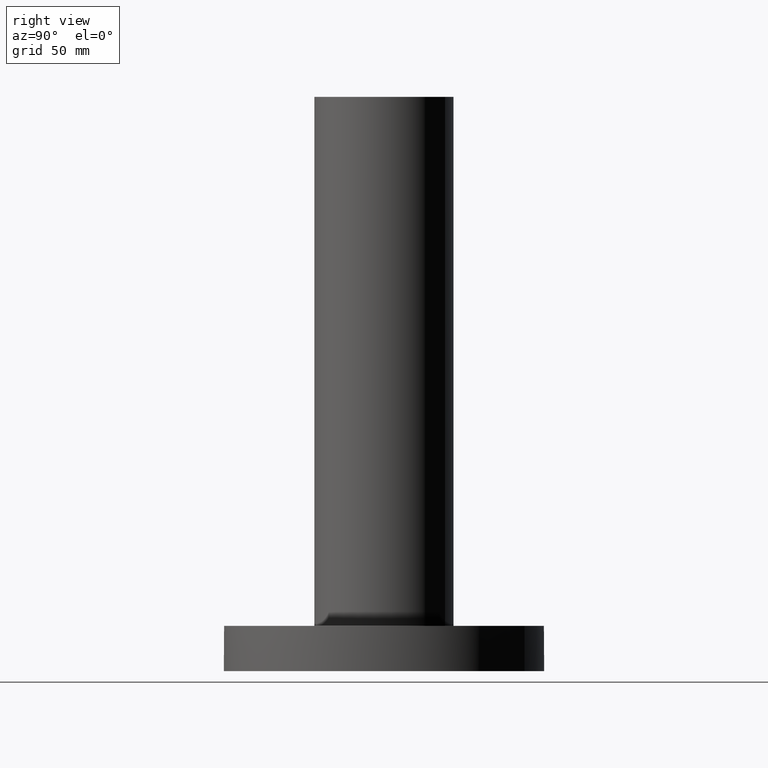
[diagram: clean part render]
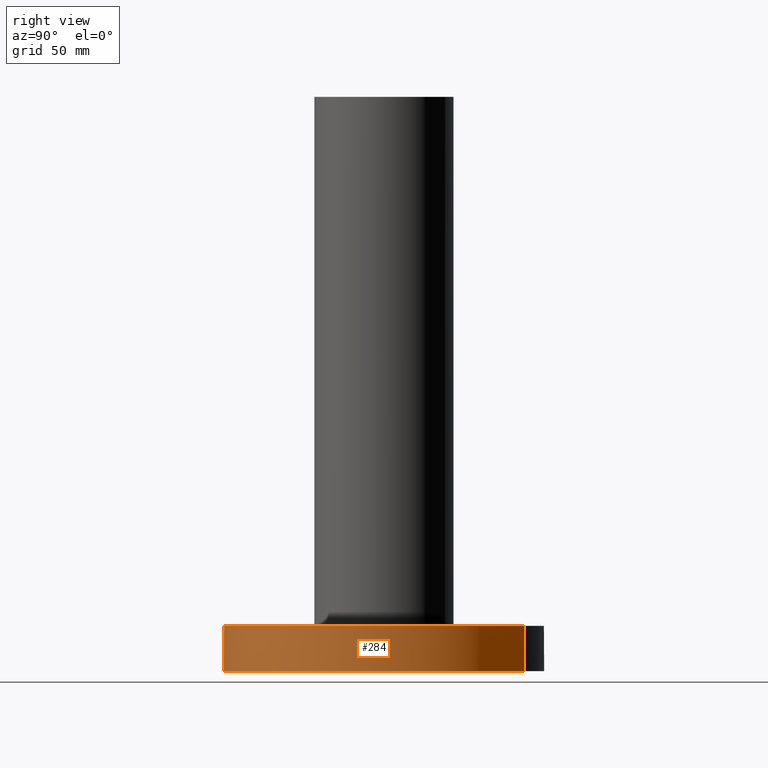
[diagram: same view with one face highlighted and labeled with its STEP entity id]
A machine part, right view. The second image highlights one B-rep face of the part: STEP entity #284.
In plain terms, the highlighted cylindrical surface (partial cylindrical patch) has radius 61.976 mm, axis along (0, 0, -1).
Its self-contained STEP definition (entity closure, byte-faithful):
#99=AXIS2_PLACEMENT_3D('Circle Axis2P3D',#97,#98,$) ;
#213=AXIS2_PLACEMENT_3D('Cylinder Axis2P3D',#210,#211,#212) ;
#259=AXIS2_PLACEMENT_3D('Circle Axis2P3D',#257,#258,$) ;
#266=AXIS2_PLACEMENT_3D('Circle Axis2P3D',#264,#265,$) ;
#273=AXIS2_PLACEMENT_3D('Circle Axis2P3D',#271,#272,$) ;
#97=CARTESIAN_POINT('Axis2P3D Location',(0.,0.,0.690000000003)) ;
#101=CARTESIAN_POINT('Vertex',(1.1697983142,2.14130145102,0.690000000003)) ;
#103=CARTESIAN_POINT('Vertex',(-1.1697983142,-2.14130145102,0.690000000003)) ;
#210=CARTESIAN_POINT('Axis2P3D Location',(0.,0.,4.25000000002)) ;
#221=CARTESIAN_POINT('Vertex',(1.1697983142,2.14130145102,0.)) ;
#235=CARTESIAN_POINT('Vertex',(-1.1697983142,-2.14130145102,0.)) ;
#238=CARTESIAN_POINT('Line Origine',(-1.1697983142,-2.14130145102,0.345000000001)) ;
#243=CARTESIAN_POINT('Line Origine',(1.1697983142,2.14130145102,0.345000000001)) ;
#257=CARTESIAN_POINT('Axis2P3D Location',(0.,0.,5.59482469102E-016)) ;
#261=CARTESIAN_POINT('Vertex',(-1.47595959856E-015,-2.44000000001,0.)) ;
#264=CARTESIAN_POINT('Axis2P3D Location',(0.,0.,5.59482469102E-016)) ;
#268=CARTESIAN_POINT('Vertex',(2.44000000001,-1.53857679003E-015,0.)) ;
#271=CARTESIAN_POINT('Axis2P3D Location',(0.,0.,5.59482469102E-016)) ;
#98=DIRECTION('Axis2P3D Direction',(0.,0.,-0.0393700787402)) ;
#211=DIRECTION('Axis2P3D Direction',(0.,0.,-0.0393700787402)) ;
#212=DIRECTION('Axis2P3D XDirection',(0.0188750212049,0.0345504945626,0.)) ;
#239=DIRECTION('Vector Direction',(0.,0.,-0.0393700787402)) ;
#244=DIRECTION('Vector Direction',(0.,0.,-0.0393700787402)) ;
#258=DIRECTION('Axis2P3D Direction',(0.,0.,-0.0393700787402)) ;
#265=DIRECTION('Axis2P3D Direction',(0.,0.,-0.0393700787402)) ;
#272=DIRECTION('Axis2P3D Direction',(0.,0.,-0.0393700787402)) ;
#240=VECTOR('Line Direction',#239,0.0393700787402) ;
#245=VECTOR('Line Direction',#244,0.0393700787402) ;
#277=ORIENTED_EDGE('',*,*,#263,.F.) ;
#278=ORIENTED_EDGE('',*,*,#270,.F.) ;
#279=ORIENTED_EDGE('',*,*,#275,.F.) ;
#280=ORIENTED_EDGE('',*,*,#247,.T.) ;
#281=ORIENTED_EDGE('',*,*,#105,.T.) ;
#282=ORIENTED_EDGE('',*,*,#242,.F.) ;
#284=ADVANCED_FACE('PartBody',(#283),#214,.T.) ;
#100=CIRCLE('generated circle',#99,2.44000000001) ;
#260=CIRCLE('generated circle',#259,2.44000000001) ;
#267=CIRCLE('generated circle',#266,2.44000000001) ;
#274=CIRCLE('generated circle',#273,2.44000000001) ;
#214=CYLINDRICAL_SURFACE('generated cylinder',#213,2.44000000001) ;
#105=EDGE_CURVE('',#102,#104,#100,.T.) ;
#242=EDGE_CURVE('',#236,#104,#241,.F.) ;
#247=EDGE_CURVE('',#222,#102,#246,.F.) ;
#263=EDGE_CURVE('',#262,#236,#260,.T.) ;
#270=EDGE_CURVE('',#269,#262,#267,.T.) ;
#275=EDGE_CURVE('',#222,#269,#274,.T.) ;
#276=EDGE_LOOP('',(#277,#278,#279,#280,#281,#282)) ;
#283=FACE_OUTER_BOUND('',#276,.T.) ;
#241=LINE('Line',#238,#240) ;
#246=LINE('Line',#243,#245) ;
#102=VERTEX_POINT('',#101) ;
#104=VERTEX_POINT('',#103) ;
#222=VERTEX_POINT('',#221) ;
#236=VERTEX_POINT('',#235) ;
#262=VERTEX_POINT('',#261) ;
#269=VERTEX_POINT('',#268) ;